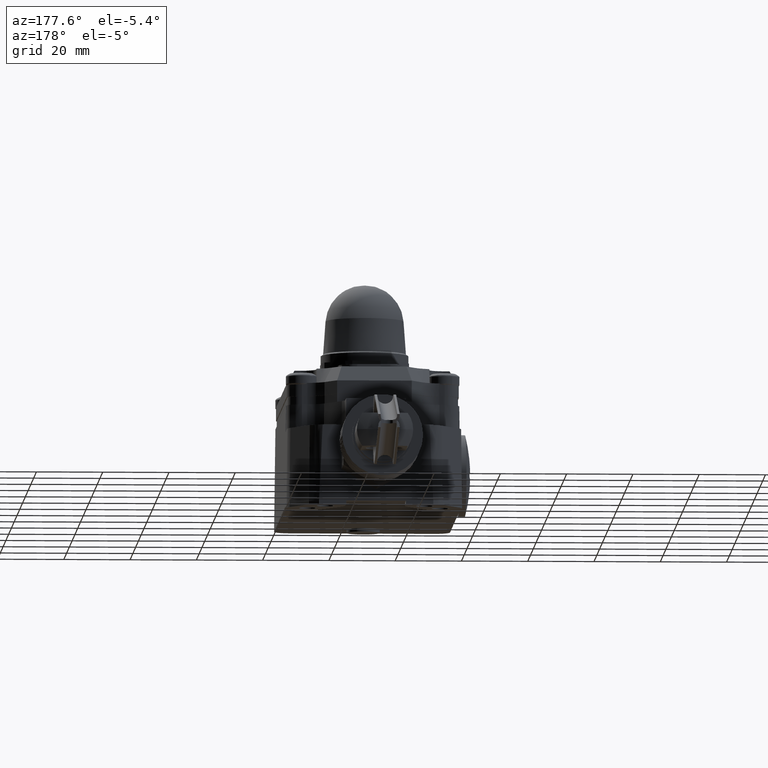
[diagram: clean part render]
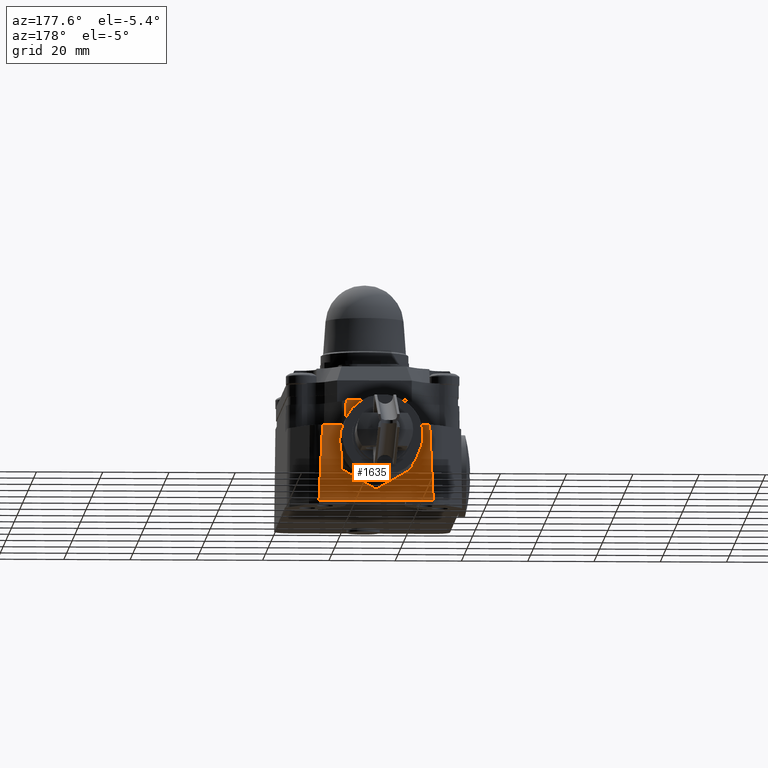
[diagram: same view with one face highlighted and labeled with its STEP entity id]
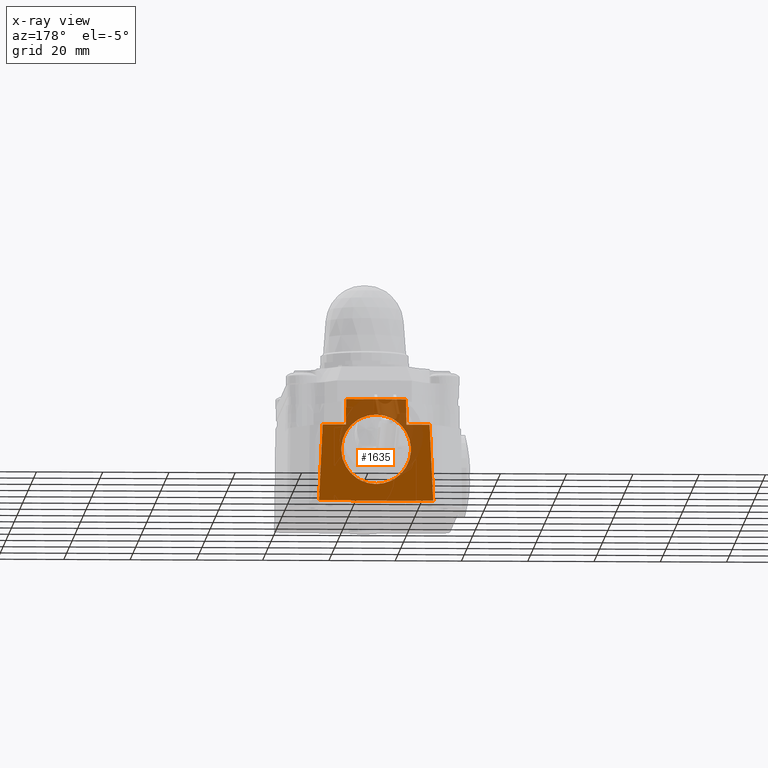
[diagram: x-ray of the same camera — body ghosted, the highlighted face saturated]
A machine part, auxiliary view. The second image highlights one B-rep face of the part: STEP entity #1635.
The next image is the same camera in x-ray: the body ghosted, the highlighted face saturated — about 27% of this face is hidden behind the body in this view.
In plain terms, the highlighted planar face has unit normal (0, 1, 0).
Its self-contained STEP definition (entity closure, byte-faithful):
#1635=ADVANCED_FACE('',(#3348,#3349),#3350,.T.);
#3348=FACE_OUTER_BOUND('',#5125,.T.);
#3349=FACE_BOUND('',#5126,.T.);
#3350=PLANE('',#5127);
#5125=EDGE_LOOP('',(#9819,#9820,#9821,#9822,#9823,#9824,#9825,#9826));
#5126=EDGE_LOOP('',(#9827,#9828,#9829,#9830,#9831,#9832,#9833,#9834,#9835,#9836,#9837,#9838));
#5127=AXIS2_PLACEMENT_3D('',#9839,#9840,#9841);
#9819=ORIENTED_EDGE('',*,*,#12281,.F.);
#9820=ORIENTED_EDGE('',*,*,#12282,.F.);
#9821=ORIENTED_EDGE('',*,*,#12283,.F.);
#9822=ORIENTED_EDGE('',*,*,#12284,.F.);
#9823=ORIENTED_EDGE('',*,*,#12285,.F.);
#9824=ORIENTED_EDGE('',*,*,#12286,.F.);
#9825=ORIENTED_EDGE('',*,*,#12287,.F.);
#9826=ORIENTED_EDGE('',*,*,#12288,.F.);
#9827=ORIENTED_EDGE('',*,*,#11928,.T.);
#9828=ORIENTED_EDGE('',*,*,#11964,.T.);
#9829=ORIENTED_EDGE('',*,*,#11899,.T.);
#9830=ORIENTED_EDGE('',*,*,#11968,.T.);
#9831=ORIENTED_EDGE('',*,*,#11890,.T.);
#9832=ORIENTED_EDGE('',*,*,#11972,.T.);
#9833=ORIENTED_EDGE('',*,*,#11881,.T.);
#9834=ORIENTED_EDGE('',*,*,#11970,.T.);
#9835=ORIENTED_EDGE('',*,*,#11910,.T.);
#9836=ORIENTED_EDGE('',*,*,#11966,.T.);
#9837=ORIENTED_EDGE('',*,*,#11919,.T.);
#9838=ORIENTED_EDGE('',*,*,#11962,.T.);
#9839=CARTESIAN_POINT('',(31.9104298117,107.04,21.5));
#9840=DIRECTION('',(-0.0,1.0,0.0));
#9841=DIRECTION('',(1.0,0.0,0.0));
#11881=EDGE_CURVE('',#14536,#14534,#14537,.T.);
#11890=EDGE_CURVE('',#14553,#14551,#14554,.T.);
#11899=EDGE_CURVE('',#14570,#14568,#14571,.T.);
#11910=EDGE_CURVE('',#14591,#14589,#14592,.T.);
#11919=EDGE_CURVE('',#14608,#14606,#14609,.T.);
#11928=EDGE_CURVE('',#14625,#14623,#14626,.T.);
#11962=EDGE_CURVE('',#14606,#14625,#14661,.T.);
#11964=EDGE_CURVE('',#14623,#14570,#14663,.T.);
#11966=EDGE_CURVE('',#14589,#14608,#14665,.T.);
#11968=EDGE_CURVE('',#14568,#14553,#14667,.T.);
#11970=EDGE_CURVE('',#14534,#14591,#14669,.T.);
#11972=EDGE_CURVE('',#14551,#14536,#14671,.T.);
#12281=EDGE_CURVE('',#15095,#15096,#15097,.T.);
#12282=EDGE_CURVE('',#15098,#15095,#15099,.T.);
#12283=EDGE_CURVE('',#15100,#15098,#15101,.T.);
#12284=EDGE_CURVE('',#15102,#15100,#15103,.T.);
#12285=EDGE_CURVE('',#15104,#15102,#15105,.T.);
#12286=EDGE_CURVE('',#15106,#15104,#15107,.T.);
#12287=EDGE_CURVE('',#15108,#15106,#15109,.T.);
#12288=EDGE_CURVE('',#15096,#15108,#15110,.T.);
#14534=VERTEX_POINT('',#18330);
#14536=VERTEX_POINT('',#18341);
#14537=LINE('',#18342,#18343);
#14551=VERTEX_POINT('',#18387);
#14553=VERTEX_POINT('',#18398);
#14554=LINE('',#18399,#18400);
#14568=VERTEX_POINT('',#18444);
#14570=VERTEX_POINT('',#18455);
#14571=LINE('',#18456,#18457);
#14589=VERTEX_POINT('',#18515);
#14591=VERTEX_POINT('',#18526);
#14592=LINE('',#18527,#18528);
#14606=VERTEX_POINT('',#18572);
#14608=VERTEX_POINT('',#18583);
#14609=LINE('',#18584,#18585);
#14623=VERTEX_POINT('',#18629);
#14625=VERTEX_POINT('',#18640);
#14626=LINE('',#18641,#18642);
#14661=CIRCLE('',#18687,10.5);
#14663=CIRCLE('',#18689,10.5);
#14665=CIRCLE('',#18691,10.5);
#14667=CIRCLE('',#18693,10.5);
#14669=CIRCLE('',#18695,10.5);
#14671=CIRCLE('',#18697,10.5);
#15095=VERTEX_POINT('',#19362);
#15096=VERTEX_POINT('',#19363);
#15097=LINE('',#19364,#19365);
#15098=VERTEX_POINT('',#19366);
#15099=LINE('',#19367,#19368);
#15100=VERTEX_POINT('',#19369);
#15101=LINE('',#19370,#19371);
#15102=VERTEX_POINT('',#19372);
#15103=LINE('',#19373,#19374);
#15104=VERTEX_POINT('',#19375);
#15105=(B_SPLINE_CURVE(2,(#19377,#19378,#19379),.UNSPECIFIED.,.F.,.F.)B_SPLINE_CURVE_WITH_KNOTS((3,3),(0.0,23.0266113970115),.UNSPECIFIED.)RATIONAL_B_SPLINE_CURVE((1.0,1.00439282536408,1.0))BOUNDED_CURVE()REPRESENTATION_ITEM('')GEOMETRIC_REPRESENTATION_ITEM()CURVE());
#15106=VERTEX_POINT('',#19386);
#15107=LINE('',#19387,#19388);
#15108=VERTEX_POINT('',#19389);
#15109=(B_SPLINE_CURVE(2,(#19391,#19392,#19393),.UNSPECIFIED.,.F.,.F.)B_SPLINE_CURVE_WITH_KNOTS((3,3),(3.48365118176728E-032,23.0266113970129),.UNSPECIFIED.)RATIONAL_B_SPLINE_CURVE((1.0,1.00439282536408,1.0))BOUNDED_CURVE()REPRESENTATION_ITEM('')GEOMETRIC_REPRESENTATION_ITEM()CURVE());
#15110=LINE('',#19400,#19401);
#18330=CARTESIAN_POINT('',(21.4304298117,107.04,15.8522346103719));
#18341=CARTESIAN_POINT('',(21.4304298117,107.04,17.1477653896281));
#18342=CARTESIAN_POINT('',(21.4304298117,107.04,19.0));
#18343=VECTOR('',#21757,1.0);
#18387=CARTESIAN_POINT('',(26.1094485284666,107.04,25.2520635367652));
#18398=CARTESIAN_POINT('',(27.2314110949523,107.04,25.8998289265457));
#18399=CARTESIAN_POINT('',(27.7529615664346,107.04,26.2009462316516));
#18400=VECTOR('',#21761,1.0);
#18444=CARTESIAN_POINT('',(36.5894485284477,107.04,25.8998289265457));
#18455=CARTESIAN_POINT('',(37.7114110949334,107.04,25.2520635367652));
#18456=CARTESIAN_POINT('',(36.0678980569654,107.04,26.2009462316516));
#18457=VECTOR('',#21765,1.0);
#18515=CARTESIAN_POINT('',(27.2314110949523,107.04,7.10017107345432));
#18526=CARTESIAN_POINT('',(26.1094485284666,107.04,7.74793646323477));
#18527=CARTESIAN_POINT('',(25.5878980569748,107.04,8.04905376834614));
#18528=VECTOR('',#21770,1.0);
#18572=CARTESIAN_POINT('',(37.7114110949334,107.04,7.74793646323477));
#18583=CARTESIAN_POINT('',(36.5894485284477,107.04,7.10017107345432));
#18584=CARTESIAN_POINT('',(38.2329615664252,107.04,8.04905376834614));
#18585=VECTOR('',#21774,1.0);
#18629=CARTESIAN_POINT('',(42.3904298117,107.04,17.1477653896281));
#18640=CARTESIAN_POINT('',(42.3904298117,107.04,15.8522346103719));
#18641=CARTESIAN_POINT('',(42.3904298117,107.04,19.0));
#18642=VECTOR('',#21778,1.0);
#18687=AXIS2_PLACEMENT_3D('',#21834,#21835,#21836);
#18689=AXIS2_PLACEMENT_3D('',#21837,#21838,#21839);
#18691=AXIS2_PLACEMENT_3D('',#21840,#21841,#21842);
#18693=AXIS2_PLACEMENT_3D('',#21843,#21844,#21845);
#18695=AXIS2_PLACEMENT_3D('',#21846,#21847,#21848);
#18697=AXIS2_PLACEMENT_3D('',#21849,#21850,#21851);
#19362=CARTESIAN_POINT('',(22.8711692291488,107.04,31.6680243105298));
#19363=CARTESIAN_POINT('',(22.7707892923,107.04,24.0));
#19364=CARTESIAN_POINT('',(22.7552116812422,107.04,22.8100261462475));
#19365=VECTOR('',#22176,1.0);
#19366=CARTESIAN_POINT('',(40.9496903943512,107.04,31.6680243105298));
#19367=CARTESIAN_POINT('',(24.3730884867,107.04,31.6680243105298));
#19368=VECTOR('',#22177,1.0);
#19369=CARTESIAN_POINT('',(41.0500703312,107.04,24.0));
#19370=CARTESIAN_POINT('',(41.0656479422578,107.04,22.8100261462481));
#19371=VECTOR('',#22178,1.0);
#19372=CARTESIAN_POINT('',(48.0500242066406,107.04,24.0));
#19373=CARTESIAN_POINT('',(31.910429811725,107.04,24.0));
#19374=VECTOR('',#22179,1.0);
#19375=CARTESIAN_POINT('',(49.1429868472669,107.04,1.0));
#19377=CARTESIAN_POINT('',(49.1429868472669,107.04,1.0));
#19378=CARTESIAN_POINT('',(48.5824411316482,107.04,16.4000634419341));
#19379=CARTESIAN_POINT('',(48.0500242066406,107.04,24.0));
#19386=CARTESIAN_POINT('',(14.6778727763773,107.04,1.0));
#19387=CARTESIAN_POINT('',(31.9104298117268,107.04,1.0));
#19388=VECTOR('',#22180,1.0);
#19389=CARTESIAN_POINT('',(15.7708354170311,107.04,24.0));
#19391=CARTESIAN_POINT('',(15.7708354170311,107.04,24.0));
#19392=CARTESIAN_POINT('',(15.2384184920096,107.04,16.400063441934));
#19393=CARTESIAN_POINT('',(14.6778727763773,107.04,1.0));
#19400=CARTESIAN_POINT('',(31.910429811725,107.04,24.0));
#19401=VECTOR('',#22181,1.0);
#21757=DIRECTION('',(0.0,0.0,-1.0));
#21761=DIRECTION('',(-0.866025403784699,0.0,-0.499999999999549));
#21765=DIRECTION('',(-0.866025403784699,0.0,0.499999999999549));
#21770=DIRECTION('',(0.866025403784699,0.0,-0.499999999999549));
#21774=DIRECTION('',(0.866025403784699,0.0,0.499999999999549));
#21778=DIRECTION('',(0.0,0.0,1.0));
#21834=CARTESIAN_POINT('',(31.9104298117,107.04,16.5));
#21835=DIRECTION('',(0.0,-1.0,0.0));
#21836=DIRECTION('',(-1.0,0.0,0.0));
#21837=CARTESIAN_POINT('',(31.9104298117,107.04,16.5));
#21838=DIRECTION('',(0.0,-1.0,0.0));
#21839=DIRECTION('',(-1.0,0.0,0.0));
#21840=CARTESIAN_POINT('',(31.9104298117,107.04,16.5));
#21841=DIRECTION('',(0.0,-1.0,0.0));
#21842=DIRECTION('',(-1.0,0.0,0.0));
#21843=CARTESIAN_POINT('',(31.9104298117,107.04,16.5));
#21844=DIRECTION('',(0.0,-1.0,0.0));
#21845=DIRECTION('',(-1.0,0.0,0.0));
#21846=CARTESIAN_POINT('',(31.9104298117,107.04,16.5));
#21847=DIRECTION('',(0.0,-1.0,0.0));
#21848=DIRECTION('',(-1.0,0.0,0.0));
#21849=CARTESIAN_POINT('',(31.9104298117,107.04,16.5));
#21850=DIRECTION('',(0.0,-1.0,0.0));
#21851=DIRECTION('',(-1.0,0.0,0.0));
#22176=DIRECTION('',(-0.0130895955713444,0.0,-0.999914327574007));
#22177=DIRECTION('',(-1.0,0.0,0.0));
#22178=DIRECTION('',(-0.0130895955713444,0.0,0.999914327574007));
#22179=DIRECTION('',(-1.0,0.0,0.0));
#22180=DIRECTION('',(1.0,0.0,0.0));
#22181=DIRECTION('',(-1.0,0.0,0.0));